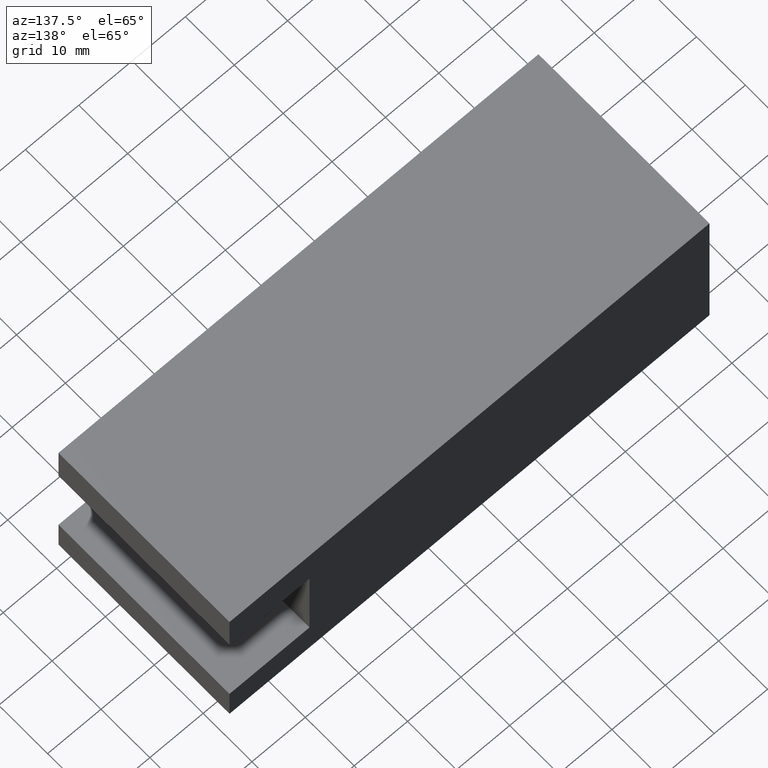
[diagram: clean part render]
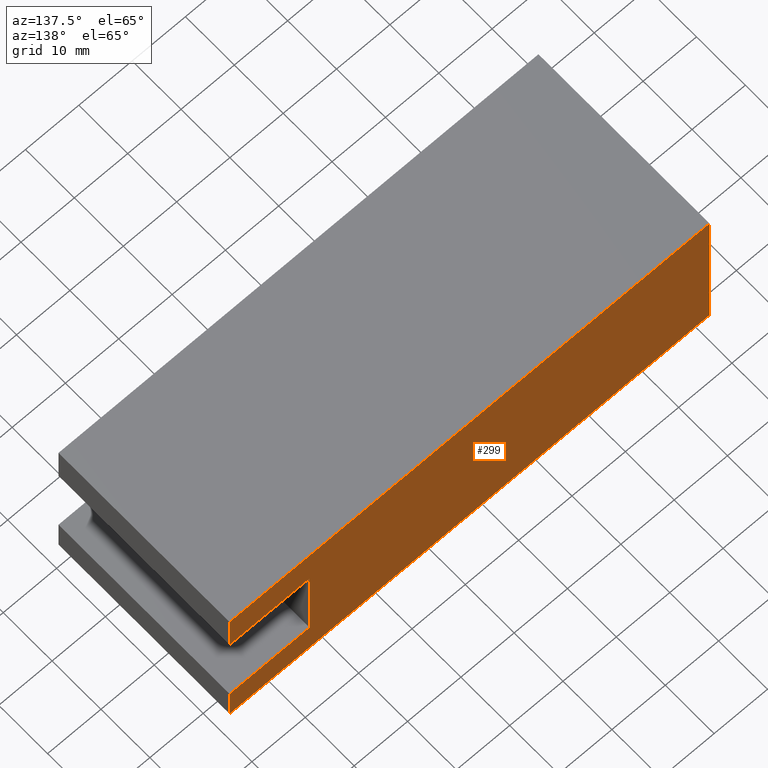
[diagram: same view with one face highlighted and labeled with its STEP entity id]
A machine part, auxiliary view. The second image highlights one B-rep face of the part: STEP entity #299.
In plain terms, the highlighted planar face has unit normal (0, 1, 0).
Its self-contained STEP definition (entity closure, byte-faithful):
#59=CARTESIAN_POINT('',(62.825283991875139,23.038875658777531,6.499999999999990));
#60=VERTEX_POINT('',#59);
#67=CARTESIAN_POINT('',(62.825283991875153,23.038875658777531,22.499999999999993));
#68=VERTEX_POINT('',#67);
#69=CARTESIAN_POINT('',(62.825283991875153,23.038875658777531,22.499999999999993));
#70=DIRECTION('',(0.0,0.0,-1.0));
#71=VECTOR('',#70,16.000000000000004);
#72=LINE('',#69,#71);
#73=EDGE_CURVE('',#68,#60,#72,.T.);
#98=CARTESIAN_POINT('',(77.825283991875153,23.038875658777531,22.499999999999993));
#99=VERTEX_POINT('',#98);
#100=CARTESIAN_POINT('',(77.825283991875153,23.038875658777531,22.499999999999993));
#101=DIRECTION('',(-1.0,0.0,0.0));
#102=VECTOR('',#101,15.0);
#103=LINE('',#100,#102);
#104=EDGE_CURVE('',#99,#68,#103,.T.);
#128=CARTESIAN_POINT('',(77.825283991875153,23.038875658777531,6.499999999999988));
#129=VERTEX_POINT('',#128);
#136=CARTESIAN_POINT('',(62.825283991875139,23.038875658777531,6.499999999999990));
#137=DIRECTION('',(1.0,0.0,0.0));
#138=VECTOR('',#137,15.000000000000014);
#139=LINE('',#136,#138);
#140=EDGE_CURVE('',#60,#129,#139,.T.);
#201=CARTESIAN_POINT('',(77.825283991875153,23.038875658777531,30.0));
#202=VERTEX_POINT('',#201);
#203=CARTESIAN_POINT('',(77.825283991875153,23.038875658777531,22.499999999999993));
#204=DIRECTION('',(0.0,0.0,1.0));
#205=VECTOR('',#204,7.500000000000007);
#206=LINE('',#203,#205);
#207=EDGE_CURVE('',#99,#202,#206,.T.);
#226=CARTESIAN_POINT('',(77.825283991875153,23.038875658777531,0.0));
#227=VERTEX_POINT('',#226);
#234=CARTESIAN_POINT('',(77.825283991875153,23.038875658777531,0.0));
#235=DIRECTION('',(0.0,0.0,1.0));
#236=VECTOR('',#235,6.499999999999988);
#237=LINE('',#234,#236);
#238=EDGE_CURVE('',#227,#129,#237,.T.);
#248=CARTESIAN_POINT('',(-12.174716008124848,23.038875658777521,30.0));
#249=VERTEX_POINT('',#248);
#256=CARTESIAN_POINT('',(-12.174716008124848,23.038875658777521,0.0));
#257=VERTEX_POINT('',#256);
#258=CARTESIAN_POINT('',(-12.174716008124848,23.038875658777521,0.0));
#259=DIRECTION('',(0.0,0.0,1.0));
#260=VECTOR('',#259,30.0);
#261=LINE('',#258,#260);
#262=EDGE_CURVE('',#257,#249,#261,.T.);
#274=CARTESIAN_POINT('',(-12.174716008124848,23.038875658777521,0.0));
#275=DIRECTION('',(0.0,1.0,0.0));
#276=DIRECTION('',(0.0,0.0,1.0));
#277=AXIS2_PLACEMENT_3D('',#274,#275,#276);
#278=PLANE('',#277);
#279=ORIENTED_EDGE('',*,*,#140,.T.);
#280=ORIENTED_EDGE('',*,*,#238,.F.);
#281=CARTESIAN_POINT('',(77.825283991875153,23.038875658777531,0.0));
#282=DIRECTION('',(-1.0,0.0,0.0));
#283=VECTOR('',#282,90.0);
#284=LINE('',#281,#283);
#285=EDGE_CURVE('',#227,#257,#284,.T.);
#286=ORIENTED_EDGE('',*,*,#285,.T.);
#287=ORIENTED_EDGE('',*,*,#262,.T.);
#288=CARTESIAN_POINT('',(-12.174716008124848,23.038875658777521,30.0));
#289=DIRECTION('',(1.0,0.0,0.0));
#290=VECTOR('',#289,90.0);
#291=LINE('',#288,#290);
#292=EDGE_CURVE('',#249,#202,#291,.T.);
#293=ORIENTED_EDGE('',*,*,#292,.T.);
#294=ORIENTED_EDGE('',*,*,#207,.F.);
#295=ORIENTED_EDGE('',*,*,#104,.T.);
#296=ORIENTED_EDGE('',*,*,#73,.T.);
#297=EDGE_LOOP('',(#279,#280,#286,#287,#293,#294,#295,#296));
#298=FACE_OUTER_BOUND('',#297,.T.);
#299=ADVANCED_FACE('',(#298),#278,.T.);